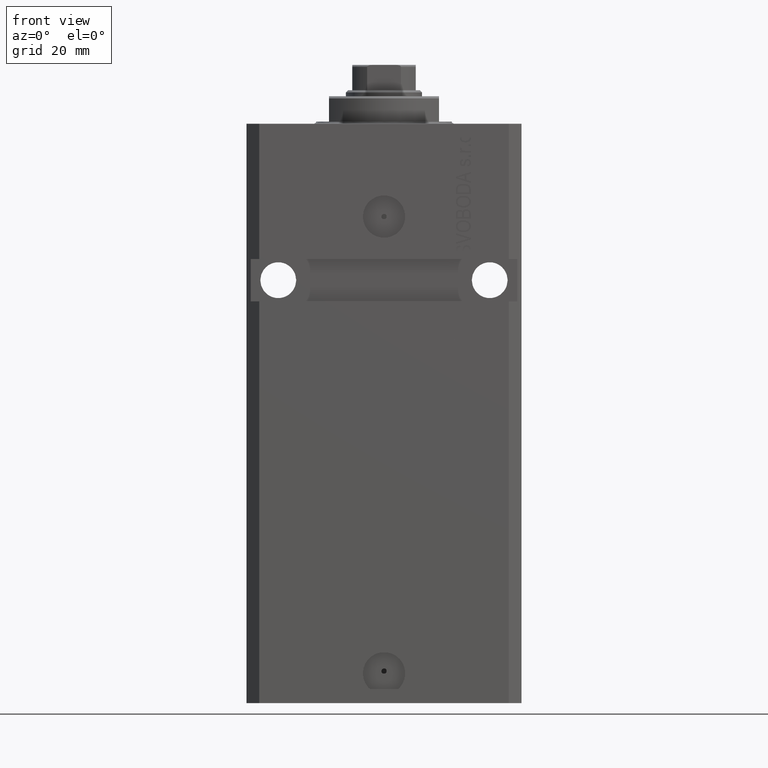
[diagram: clean part render]
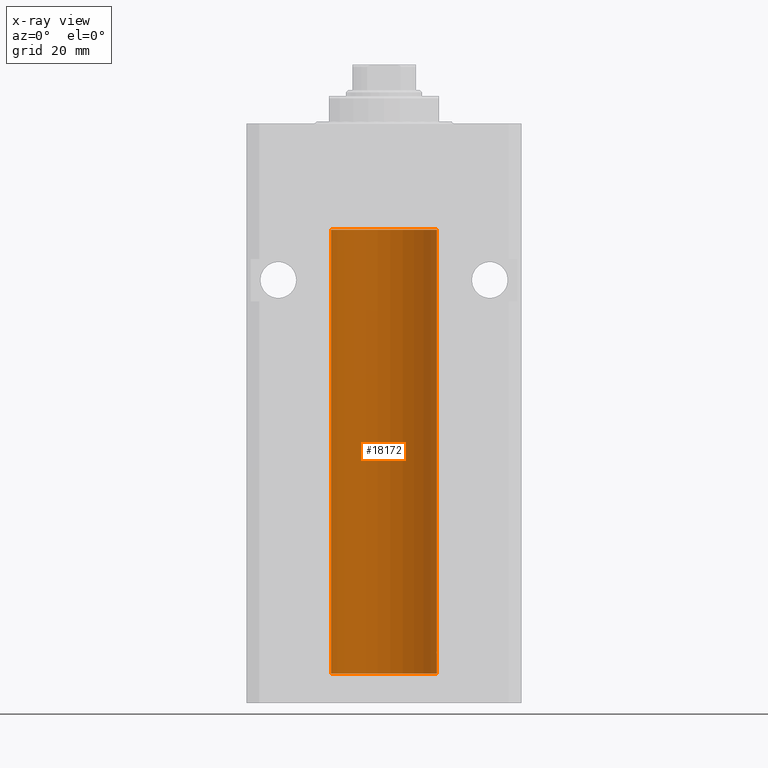
[diagram: x-ray — body ghosted, one internal face saturated and labeled with its STEP entity id]
A machine part, front view, then the same camera in x-ray: the body is ghosted and one INTERNAL B-rep face — a face not visible from any outside direction — is saturated and labeled: STEP entity #18172.
In plain terms, the highlighted cylindrical surface (partial cylindrical patch) has radius 12.5 mm, axis along (0, 0, 1).
Its self-contained STEP definition (entity closure, byte-faithful):
#305 = CARTESIAN_POINT ( 'NONE',  ( 12.48436522214885613, 0.6250000000001550982, -125.1631274754030585 ) ) ;
#1411 = CARTESIAN_POINT ( 'NONE',  ( 12.50000000000017941, 3.868073647803008074E-13, -124.3749999999964047 ) ) ;
#1848 = DIRECTION ( 'NONE',  ( -0.000000000000000000, -0.000000000000000000, 1.000000000000000000 ) ) ;
#2590 = CARTESIAN_POINT ( 'NONE',  ( 12.50000000000017941, 3.868073647803008074E-13, -124.3749999999964047 ) ) ;
#3064 = DIRECTION ( 'NONE',  ( -0.000000000000000000, -0.000000000000000000, 1.000000000000000000 ) ) ;
#4119 = CARTESIAN_POINT ( 'NONE',  ( 12.49915742890631876, 0.1636982395582410321, -125.6087239784702518 ) ) ;
#6177 = EDGE_CURVE ( 'NONE', #45736, #30826, #25840, .T. ) ;
#7353 = CARTESIAN_POINT ( 'NONE',  ( -12.50000000000000000, 1.530808498934191521E-15, -25.10000000000000142 ) ) ;
#8176 = EDGE_CURVE ( 'NONE', #8626, #45116, #28545, .T. ) ;
#8626 = VERTEX_POINT ( 'NONE', #36923 ) ;
#8920 = AXIS2_PLACEMENT_3D ( 'NONE', #45514, #1848, #26893 ) ;
#9451 = VECTOR ( 'NONE', #41843, 1000.000000000000000 ) ;
#9994 = CARTESIAN_POINT ( 'NONE',  ( 12.48520578595315023, 0.6087855079133756009, -124.8365671750934780 ) ) ;
#10359 = ORIENTED_EDGE ( 'NONE', *, *, #46913, .F. ) ;
#10821 = CARTESIAN_POINT ( 'NONE',  ( 12.50000000000000000, 5.055633433180616021E-15, -125.6250000000000142 ) ) ;
#11292 = CARTESIAN_POINT ( 'NONE',  ( 12.48436522214846711, 0.6250000000078859141, -124.9999999999992326 ) ) ;
#11828 = DIRECTION ( 'NONE',  ( 1.000000000000000000, 0.000000000000000000, 0.000000000000000000 ) ) ;
#12130 = VECTOR ( 'NONE', #41847, 1000.000000000000000 ) ;
#12363 = CYLINDRICAL_SURFACE ( 'NONE', #8920, 12.50000000000000000 ) ;
#14554 = CIRCLE ( 'NONE', #24410, 12.50000000000000000 ) ;
#14710 = ORIENTED_EDGE ( 'NONE', *, *, #24560, .T. ) ;
#16517 = VERTEX_POINT ( 'NONE', #43386 ) ;
#18094 = CARTESIAN_POINT ( 'NONE',  ( 12.49999999999999467, 0.1631389616600898151, -124.3750000000002274 ) ) ;
#18172 = ADVANCED_FACE ( 'NONE', ( #27360 ), #12363, .F. ) ;
#20957 = CARTESIAN_POINT ( 'NONE',  ( 12.48810305280568222, 0.5461368461738498326, -124.6852546614267538 ) ) ;
#21200 = LINE ( 'NONE', #35750, #31217 ) ;
#21580 = ORIENTED_EDGE ( 'NONE', *, *, #44333, .T. ) ;
#22017 = CARTESIAN_POINT ( 'NONE',  ( 12.49421963472024544, 0.3844519291903631952, -125.4994730364704907 ) ) ;
#22921 = DIRECTION ( 'NONE',  ( 0.000000000000000000, 0.000000000000000000, 1.000000000000000000 ) ) ;
#23017 = EDGE_CURVE ( 'NONE', #37460, #45116, #31096, .T. ) ;
#23036 = DIRECTION ( 'NONE',  ( 0.000000000000000000, 0.000000000000000000, 1.000000000000000000 ) ) ;
#23928 = CARTESIAN_POINT ( 'NONE',  ( 12.50000000000000000, 0.000000000000000000, -130.0999999999999943 ) ) ;
#24410 = AXIS2_PLACEMENT_3D ( 'NONE', #30068, #22921, #33906 ) ;
#24492 = ORIENTED_EDGE ( 'NONE', *, *, #8176, .T. ) ;
#24560 = EDGE_CURVE ( 'NONE', #30826, #8626, #21200, .T. ) ;
#25350 = CARTESIAN_POINT ( 'NONE',  ( 12.49625698805480845, 0.3151108292486959339, -125.5459369568817038 ) ) ;
#25497 = VERTEX_POINT ( 'NONE', #31542 ) ;
#25840 = B_SPLINE_CURVE_WITH_KNOTS ( 'NONE', 3,
 ( #39332, #35744, #9994, #20957, #29049, #39097, #18094, #2590 ),
 .UNSPECIFIED., .F., .F.,
 ( 4, 2, 2, 4 ),
 ( 0.0009773924225142717210, 0.001221629287363824694, 0.001465866152213377450, 0.001954339881912483395 ),
 .UNSPECIFIED. ) ;
#26063 = CARTESIAN_POINT ( 'NONE',  ( 12.48436522214846711, 0.6250000000078859141, -124.9999999999992326 ) ) ;
#26132 = CARTESIAN_POINT ( 'NONE',  ( 0.000000000000000000, 0.000000000000000000, -25.10000000000000142 ) ) ;
#26561 = LINE ( 'NONE', #23928, #9451 ) ;
#26893 = DIRECTION ( 'NONE',  ( 1.000000000000000000, 0.000000000000000000, 0.000000000000000000 ) ) ;
#26940 = ORIENTED_EDGE ( 'NONE', *, *, #6177, .T. ) ;
#27360 = FACE_OUTER_BOUND ( 'NONE', #45903, .T. ) ;
#28545 = CIRCLE ( 'NONE', #36187, 12.50000000000000000 ) ;
#29049 = CARTESIAN_POINT ( 'NONE',  ( 12.49012055744648642, 0.5002956126656095126, -124.6164171020240445 ) ) ;
#29169 = CARTESIAN_POINT ( 'NONE',  ( 12.50000000000000000, 0.08262306818362785688, -125.6249999999999858 ) ) ;
#30068 = CARTESIAN_POINT ( 'NONE',  ( 0.000000000000000000, 0.000000000000000000, -130.0999999999999943 ) ) ;
#30826 = VERTEX_POINT ( 'NONE', #1411 ) ;
#31096 = LINE ( 'NONE', #38496, #12130 ) ;
#31217 = VECTOR ( 'NONE', #3064, 1000.000000000000000 ) ;
#31542 = CARTESIAN_POINT ( 'NONE',  ( 12.50000000000000000, 0.000000000000000000, -130.0999999999999943 ) ) ;
#33467 = CARTESIAN_POINT ( 'NONE',  ( 12.48809900631782099, 0.5573988467445673001, -125.3264014793547290 ) ) ;
#33906 = DIRECTION ( 'NONE',  ( 1.000000000000000000, 0.000000000000000000, 0.000000000000000000 ) ) ;
#35744 = CARTESIAN_POINT ( 'NONE',  ( 12.48436522214887745, 0.6249999999996828093, -124.9184733946234758 ) ) ;
#35750 = CARTESIAN_POINT ( 'NONE',  ( 12.50000000000000000, 0.000000000000000000, -130.0999999999999943 ) ) ;
#36187 = AXIS2_PLACEMENT_3D ( 'NONE', #26132, #23036, #11828 ) ;
#36923 = CARTESIAN_POINT ( 'NONE',  ( 12.50000000000000000, 0.000000000000000000, -25.10000000000000142 ) ) ;
#37460 = VERTEX_POINT ( 'NONE', #42663 ) ;
#37700 = EDGE_CURVE ( 'NONE', #25497, #16517, #26561, .T. ) ;
#38496 = CARTESIAN_POINT ( 'NONE',  ( -12.50000000000000000, 1.530808498934191521E-15, -130.0999999999999943 ) ) ;
#39097 = CARTESIAN_POINT ( 'NONE',  ( 12.49631206032075781, 0.3252904079142953098, -124.4413970021492872 ) ) ;
#39332 = CARTESIAN_POINT ( 'NONE',  ( 12.48436522214846711, 0.6250000000078859141, -124.9999999999992326 ) ) ;
#41093 = ORIENTED_EDGE ( 'NONE', *, *, #37700, .T. ) ;
#41843 = DIRECTION ( 'NONE',  ( -0.000000000000000000, -0.000000000000000000, 1.000000000000000000 ) ) ;
#41847 = DIRECTION ( 'NONE',  ( -0.000000000000000000, -0.000000000000000000, 1.000000000000000000 ) ) ;
#42663 = CARTESIAN_POINT ( 'NONE',  ( -12.50000000000000000, 1.530808498934191521E-15, -130.0999999999999943 ) ) ;
#43386 = CARTESIAN_POINT ( 'NONE',  ( 12.50000000000000000, 5.055633433180616021E-15, -125.6250000000000142 ) ) ;
#43706 = B_SPLINE_CURVE_WITH_KNOTS ( 'NONE', 3,
 ( #10821, #29169, #4119, #25350, #22017, #33467, #305, #26063 ),
 .UNSPECIFIED., .F., .F.,
 ( 4, 2, 2, 4 ),
 ( 4.913018323501965315E-18, 0.0002443481056285863075, 0.0004886962112571676276, 0.0009773924225142717210 ),
 .UNSPECIFIED. ) ;
#44333 = EDGE_CURVE ( 'NONE', #16517, #45736, #43706, .T. ) ;
#45116 = VERTEX_POINT ( 'NONE', #7353 ) ;
#45472 = ORIENTED_EDGE ( 'NONE', *, *, #23017, .F. ) ;
#45514 = CARTESIAN_POINT ( 'NONE',  ( 0.000000000000000000, 0.000000000000000000, -130.0999999999999943 ) ) ;
#45736 = VERTEX_POINT ( 'NONE', #11292 ) ;
#45903 = EDGE_LOOP ( 'NONE', ( #45472, #10359, #41093, #21580, #26940, #14710, #24492 ) ) ;
#46913 = EDGE_CURVE ( 'NONE', #25497, #37460, #14554, .T. ) ;